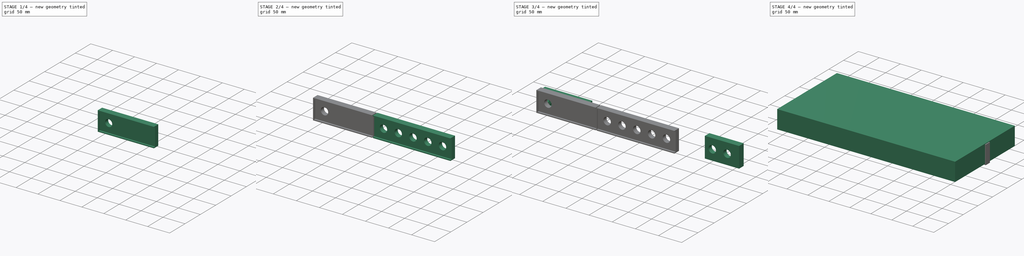
[diagram: build sequence overview — one tinted view per stage of 4, left to right]
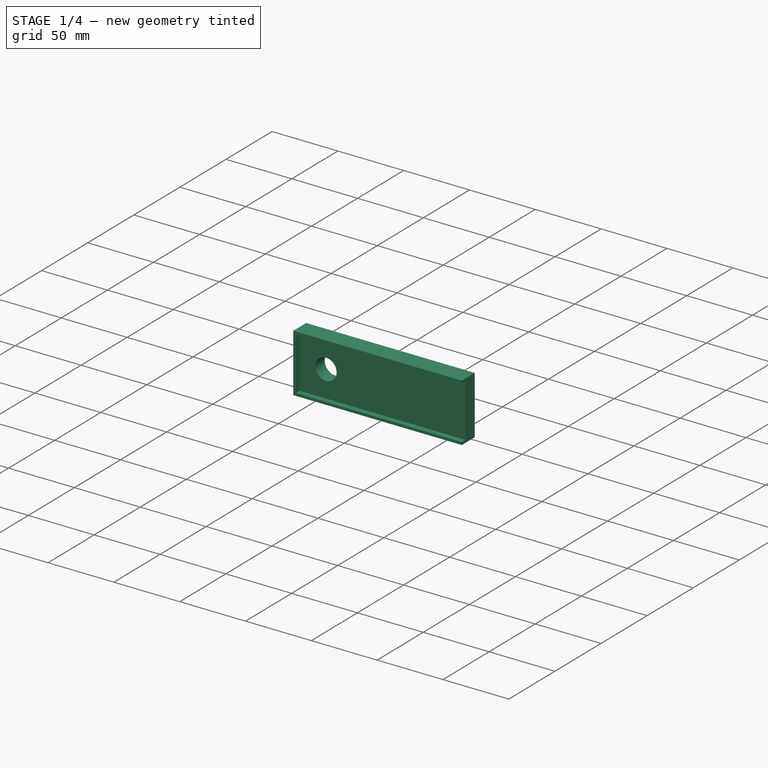
[diagram: stage 1 of 4 — iso view after this stage's code; geometry added in this stage tinted green]
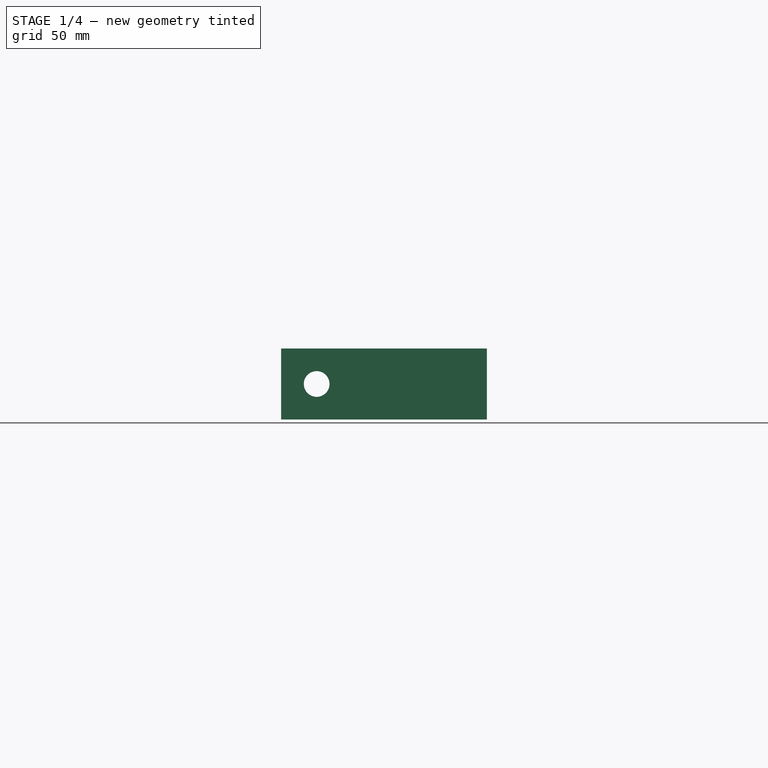
[diagram: stage 1 of 4 — front view after this stage's code; geometry added in this stage tinted green]
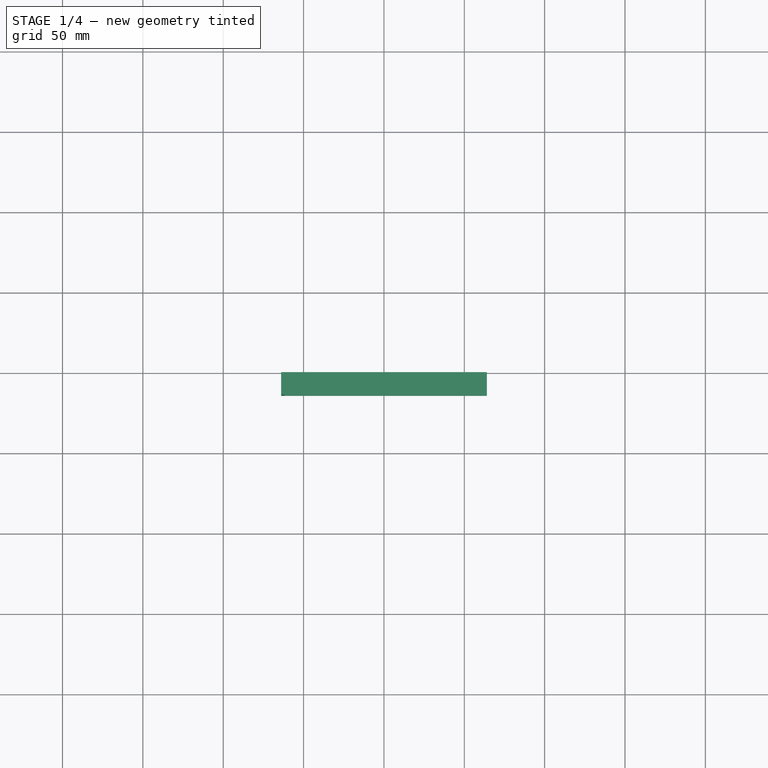
[diagram: stage 1 of 4 — top view after this stage's code; geometry added in this stage tinted green]
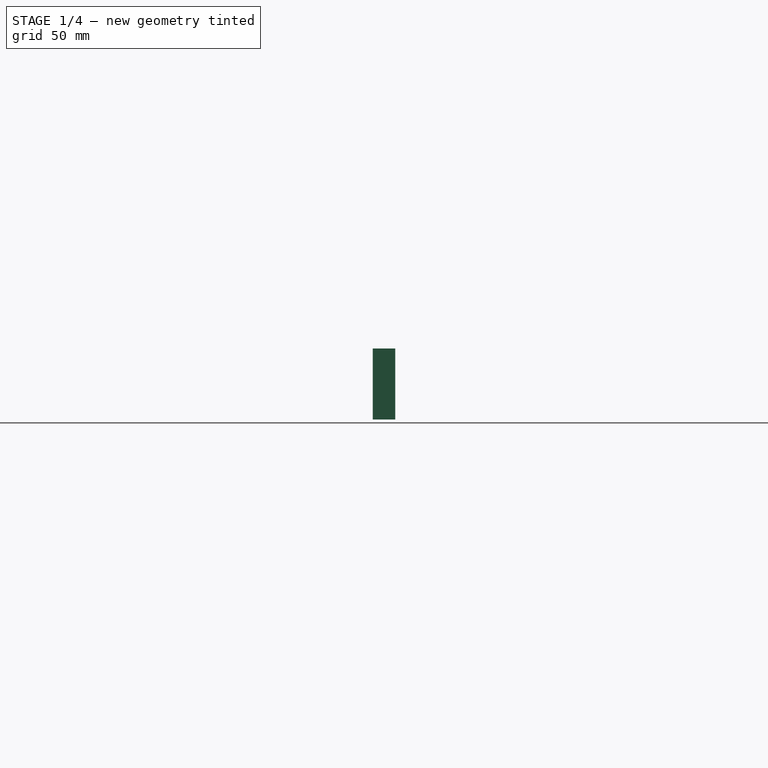
[diagram: stage 1 of 4 — right view after this stage's code; geometry added in this stage tinted green]
FCSTD DOCUMENT  (FreeCAD 1.1R38728 (Git))
Label: AuxPower1U Drill Template
License: All rights reserved
LicenseURL: https://en.wikipedia.org/wiki/All_rights_reserved
objects: Sketcher::SketchObject×10, PartDesign::Pad×10, PartDesign::Body×5
note: 55 computed .brp shape members not serialized (recipe doc carries the construction recipe); baked Part::Feature solids carry a one-line shape summary decoded from their .brp

FEATURE [PartDesign::Body] Body  label="Case"
  AllowCompound = false
  Group = -> [Sketch,Pad]
  Origin = -> Origin
  Tip = -> Pad
FEATURE [Sketcher::SketchObject] Sketch002  label="Block-Oled-Sketch"
  ArcFitTolerance = 1e-06
  AttachmentSupport = -> [XZ_Plane002]
  FullyConstrained = true
  MakeInternals = false
  MapMode = 5
  Placement = pos=(0,0,0) rot=(1,0,0;1.5708rad)
  sketch-geometry (8):
    g0: LineSegment StartX=-211.963 StartY=40.2 StartZ=0 EndX=-211.963 EndY=0 EndZ=0
    g1: LineSegment StartX=-211.963 StartY=0 StartZ=0 EndX=-85.963 EndY=0 EndZ=0
    g2: LineSegment StartX=-85.963 StartY=0 StartZ=0 EndX=-85.963 EndY=40.2 EndZ=0
    g3: LineSegment StartX=-85.963 StartY=40.2 StartZ=0 EndX=-211.963 EndY=40.2 EndZ=0
    g4: LineSegment [constr] StartX=-211.963 StartY=0 StartZ=0 EndX=211.963 EndY=0 EndZ=0
    g5: Circle CenterX=-191.863 CenterY=20.1 CenterZ=0 NormalX=0 NormalY=0 NormalZ=1 AngleXU=0 Radius=8
    g6: LineSegment [constr] StartX=-211.963 StartY=0 StartZ=0 EndX=-191.863 EndY=20.1 EndZ=0
    g7: LineSegment [constr] StartX=-211.963 StartY=40.2 StartZ=0 EndX=-191.863 EndY=20.1 EndZ=0
  constraints (21):
    c: Coincident(g0,g1)
    c: Coincident(g1,g2)
    c: Coincident(g2,g3)
    c: Coincident(g3,g0)
    c: Vertical(g0)
    c: Vertical(g2)
    c: Horizontal(g1)
    c: Horizontal(g3)
    c: DistanceY(g0,g0) = 40.2
    c: DistanceX(g3,g3) = 126
    c: Horizontal(g4)
    c: DistanceX(g4,g4) = 423.926
    c: Symmetric(g4,g4,g-1)
    c: Coincident(g0,g4)
    c: Diameter(g5) = 16  'Hole'
    c: Coincident(g6,g0)
    c: Coincident(g6,g5)
    c: Coincident(g7,g0)
    c: Coincident(g7,g5)
    c: Equal(g7,g6)
    c: Angle(g6) = 0.785398
FEATURE [PartDesign::Pad] Pad002  label="Block-Oled"
  Direction = (0,-1,2e-16)
  Length = 10
  Length2 = 10
  Placement = pos=(0,0,0) rot=(1,0,0;1.5708rad)
  Profile = -> Sketch002
  ReferenceAxis = -> Sketch002 [N_Axis]
  Refine = true
  Suppressed = false
  Type = 0
FEATURE [PartDesign::Body] Body003  label="Front-Buttons-16mm"
  AllowCompound = false
  Group = -> [Sketch003,Pad003,Sketch013,Pad012,Sketch014,Pad013]
  Origin = -> Origin003
  Placement = pos=(0,-150,0) rot=(0,0,1;0rad)
  Tip = -> Pad013
FEATURE [Sketcher::SketchObject] Sketch015  label="Shroud-Oled-Sketch"
  ArcFitTolerance = 1e-06
  AttachmentSupport = -> [XZ_Plane002]
  ExternalGeometry = -> [Pad002]
  FullyConstrained = true
  MakeInternals = false
  MapMode = 5
  Placement = pos=(0,0,0) rot=(1,0,0;1.5708rad)
  sketch-geometry (12):
    g0: LineSegment [constr] StartX=-211.963 StartY=40.2 StartZ=0 EndX=-213.963 EndY=40.2 EndZ=0
    g1: LineSegment [constr] StartX=-213.963 StartY=40.2 StartZ=0 EndX=-213.963 EndY=42.2 EndZ=0
    g2: LineSegment [constr] StartX=-211.963 StartY=0 StartZ=0 EndX=-211.963 EndY=-2 EndZ=0
    g3: LineSegment [constr] StartX=-211.963 StartY=-2 StartZ=0 EndX=-213.963 EndY=-2 EndZ=0
    g4: LineSegment StartX=-85.963 StartY=0 StartZ=0 EndX=-85.963 EndY=-2 EndZ=0
    g5: LineSegment StartX=-85.963 StartY=40.2 StartZ=0 EndX=-85.963 EndY=42.2 EndZ=0
    g6: LineSegment StartX=-85.963 StartY=-2 StartZ=0 EndX=-213.963 EndY=-2 EndZ=0
    g7: LineSegment StartX=-213.963 StartY=-2 StartZ=0 EndX=-213.963 EndY=42.2 EndZ=0
    g8: LineSegment StartX=-213.963 StartY=42.2 StartZ=0 EndX=-85.963 EndY=42.2 EndZ=0
    g9: LineSegment StartX=-85.963 StartY=40.2 StartZ=0 EndX=-211.963 EndY=40.2 EndZ=0
    g10: LineSegment StartX=-211.963 StartY=40.2 StartZ=0 EndX=-211.963 EndY=0 EndZ=0
    g11: LineSegment StartX=-211.963 StartY=0 StartZ=0 EndX=-85.963 EndY=0 EndZ=0
  constraints (30):
    c: Distance(g0) = 2
    c: Coincident(g0,g-4)
    c: Horizontal(g0)
    c: Coincident(g1,g0)
    c: Vertical(g1)
    c: Equal(g1,g0)
    c: Coincident(g2,g-3)
    c: Vertical(g2)
    c: Equal(g2,g0)
    c: Coincident(g3,g2)
    c: Horizontal(g3)
    c: Equal(g3,g2)
    c: Coincident(g4,g-5)
    c: Vertical(g4)
    c: Equal(g4,g2)
    c: Coincident(g5,g-5)
    c: Vertical(g5)
    c: Equal(g5,g4)
    c: Coincident(g6,g4)
    c: Coincident(g6,g3)
    c: Coincident(g7,g3)
    c: Coincident(g7,g1)
    c: Coincident(g8,g1)
    c: Coincident(g8,g5)
    c: Coincident(g9,g5)
    c: Coincident(g9,g0)
    c: Coincident(g10,g0)
    c: Coincident(g10,g2)
    c: Coincident(g11,g2)
    c: Coincident(g11,g4)
FEATURE [PartDesign::Pad] Pad014  label="Shroud-Oled"
  BaseFeature = -> Pad002
  Direction = (0,-1,2e-16)
  Length = 14
  Length2 = 10
  Placement = pos=(0,0,0) rot=(1,0,0;1.5708rad)
  Profile = -> Sketch015
  ReferenceAxis = -> Sketch015 [N_Axis]
  Refine = true
  Suppressed = false
  Type = 0
FEATURE [PartDesign::Body] Body002  label="Front-Oled-16mm"
  AllowCompound = false
  Group = -> [Sketch002,Pad002,Sketch015,Pad014]
  Origin = -> Origin002
  Placement = pos=(0,-150,0) rot=(0,0,1;0rad)
  Tip = -> Pad014
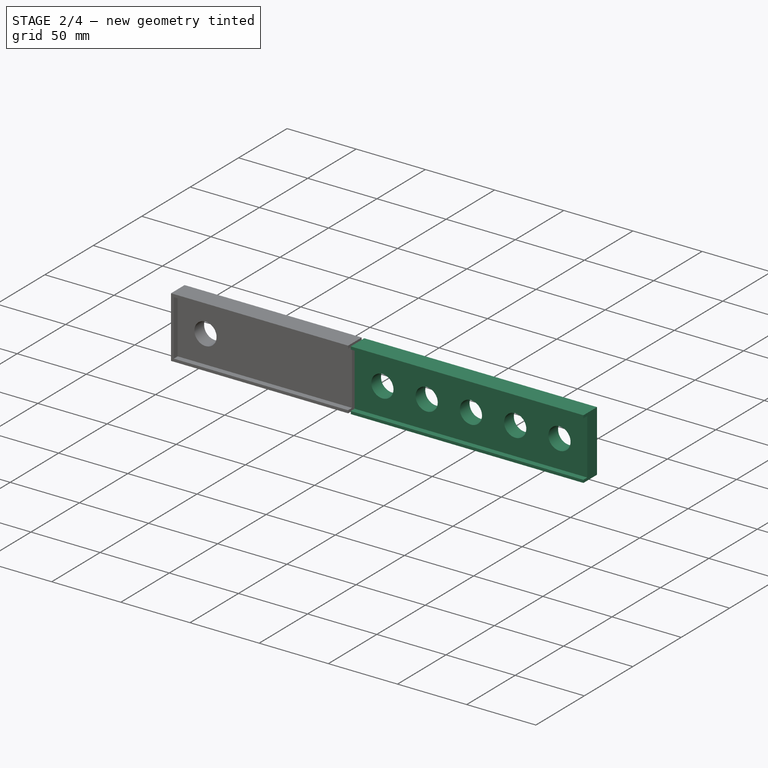
[diagram: stage 2 of 4 — iso view after this stage's code; geometry added in this stage tinted green]
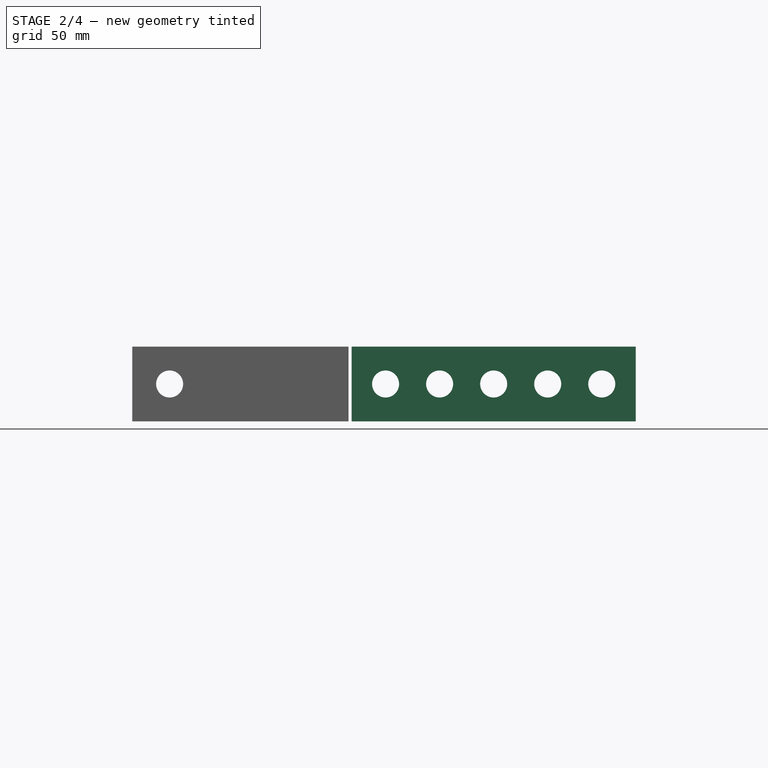
[diagram: stage 2 of 4 — front view after this stage's code; geometry added in this stage tinted green]
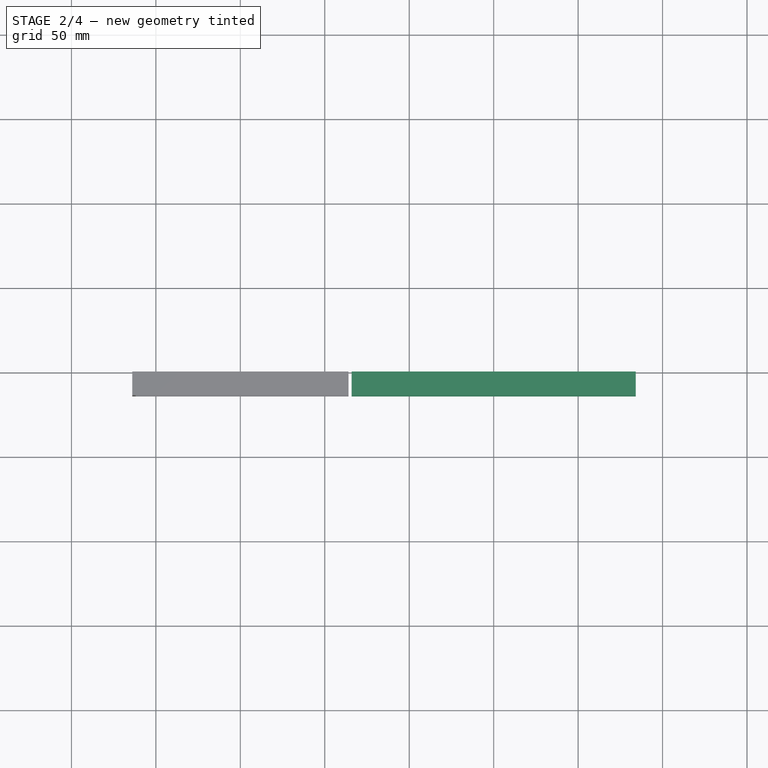
[diagram: stage 2 of 4 — top view after this stage's code; geometry added in this stage tinted green]
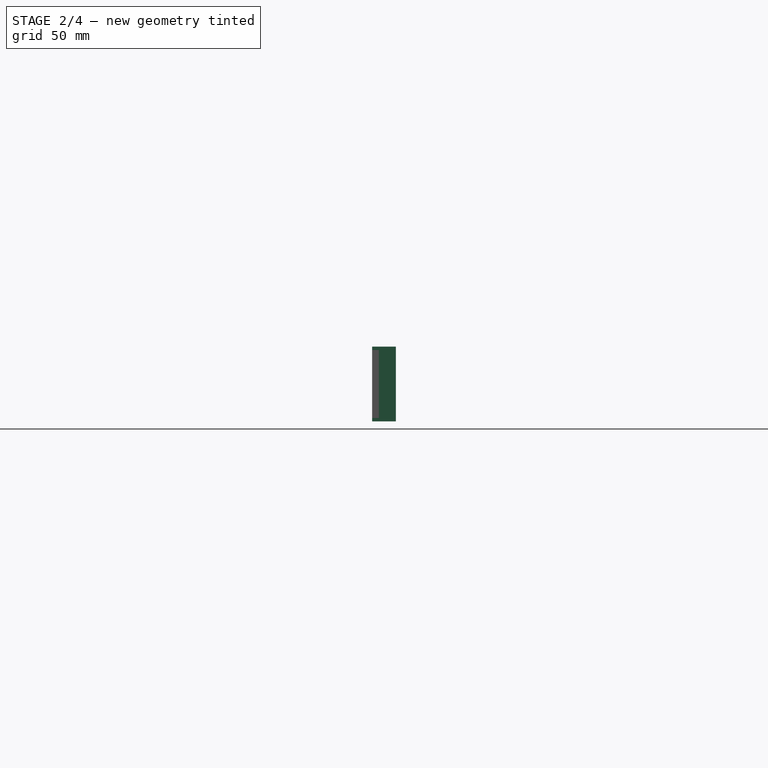
[diagram: stage 2 of 4 — right view after this stage's code; geometry added in this stage tinted green]
FEATURE [Sketcher::SketchObject] Sketch003  label="Block-Buttons-Sketch"
  ArcFitTolerance = 1e-06
  AttachmentSupport = -> [XZ_Plane003]
  FullyConstrained = true
  MakeInternals = false
  MapMode = 5
  Placement = pos=(0,0,0) rot=(1,0,0;1.5708rad)
  sketch-geometry (19):
    g0: LineSegment StartX=-84.1 StartY=40.2 StartZ=0 EndX=-84.1 EndY=0 EndZ=0
    g1: LineSegment StartX=-84.1 StartY=0 StartZ=0 EndX=84.1 EndY=0 EndZ=0
    g2: LineSegment StartX=84.1 StartY=0 StartZ=0 EndX=84.1 EndY=40.2 EndZ=0
    g3: LineSegment StartX=84.1 StartY=40.2 StartZ=0 EndX=-84.1 EndY=40.2 EndZ=0
    g4: LineSegment [constr] StartX=-211.963 StartY=0 StartZ=0 EndX=211.963 EndY=0 EndZ=0
    g5: Circle [constr] CenterX=64 CenterY=20.1 CenterZ=0 NormalX=0 NormalY=0 NormalZ=1 AngleXU=0 Radius=12
    g6: Circle CenterX=64 CenterY=20.1 CenterZ=0 NormalX=0 NormalY=0 NormalZ=1 AngleXU=0 Radius=8
    g7: Circle [constr] CenterX=-64 CenterY=20.1 CenterZ=0 NormalX=0 NormalY=0 NormalZ=1 AngleXU=0 Radius=12
    g8: Circle CenterX=-64 CenterY=20.1 CenterZ=0 NormalX=0 NormalY=0 NormalZ=1 AngleXU=0 Radius=8
    g9: Circle [constr] CenterX=-32 CenterY=20.1 CenterZ=0 NormalX=0 NormalY=0 NormalZ=1 AngleXU=0 Radius=12
    g10: Circle CenterX=-32 CenterY=20.1 CenterZ=0 NormalX=0 NormalY=0 NormalZ=1 AngleXU=0 Radius=8
    g11: Circle [constr] CenterX=0 CenterY=20.1 CenterZ=0 NormalX=0 NormalY=0 NormalZ=1 AngleXU=0 Radius=12
    g12: Circle CenterX=0 CenterY=20.1 CenterZ=0 NormalX=0 NormalY=0 NormalZ=1 AngleXU=0 Radius=8
    g13: Circle [constr] CenterX=32 CenterY=20.1 CenterZ=0 NormalX=0 NormalY=0 NormalZ=1 AngleXU=0 Radius=12
    g14: Circle CenterX=32 CenterY=20.1 CenterZ=0 NormalX=0 NormalY=0 NormalZ=1 AngleXU=0 Radius=8
    g15: LineSegment [constr] StartX=-84.1 StartY=40.2 StartZ=0 EndX=-64 EndY=20.1 EndZ=0
    g16: LineSegment [constr] StartX=64 StartY=20.1 StartZ=0 EndX=84.1 EndY=40.2 EndZ=0
    g17: LineSegment [constr] StartX=84.1 StartY=0 StartZ=0 EndX=64 EndY=20.1 EndZ=0
    g18: LineSegment [constr] StartX=-64 StartY=20.1 StartZ=0 EndX=-84.1 EndY=0 EndZ=0
  constraints (48):
    c: Coincident(g0,g1)
    c: Coincident(g1,g2)
    c: Coincident(g2,g3)
    c: Coincident(g3,g0)
    c: Vertical(g0)
    c: Vertical(g2)
    c: Horizontal(g1)
    c: Horizontal(g3)
    c: DistanceY(g0,g0) = 40.2
    c: Horizontal(g4)
    c: DistanceX(g4,g4) = 423.926
    c: Symmetric(g4,g4,g-1)
    c: Diameter(g5) = 24
    c: Coincident(g5,g6)
    c: Diameter(g7) = 24
    c: Coincident(g7,g8)
    c: Diameter(g9) = 24
    c: Coincident(g9,g10)
    c: Diameter(g11) = 24
    c: Diameter(g12) = 16  'Hole'
    c: Coincident(g11,g12)
    c: Diameter(g13) = 24
    c: Coincident(g13,g14)
    c: DistanceX(g13,g5) = 32
    c: DistanceX(g11,g13) = 32
    c: DistanceX(g9,g11) = 32
    c: DistanceX(g7,g9) = 32
    c: Horizontal(g7,g9)
    c: Horizontal(g9,g11)
    c: Horizontal(g11,g13)
    c: Horizontal(g13,g5)
    c: Coincident(g15,g0)
    c: Coincident(g15,g7)
    c: PointOnObject(g11,g-2)
    c: Angle(g15) = -0.785398
    c: Coincident(g16,g5)
    c: Coincident(g16,g2)
    c: Coincident(g17,g1)
    c: Coincident(g17,g5)
    c: Angle(g16) = 0.785398
    c: Coincident(g18,g7)
    c: Coincident(g18,g0)
    c: Equal(g18,g15)
    c: PointOnObject(g0,g4)
    c: Equal(g8,g10)
    c: Equal(g10,g14)
    c: Equal(g14,g6)
    c: Equal(g12,g10)
FEATURE [PartDesign::Pad] Pad003  label="Block-Buttons"
  Direction = (0,-1,2e-16)
  Length = 10
  Length2 = 10
  Placement = pos=(0,0,0) rot=(1,0,0;1.5708rad)
  Profile = -> Sketch003
  ReferenceAxis = -> Sketch003 [N_Axis]
  Refine = true
  Suppressed = false
  Type = 0
FEATURE [PartDesign::Body] Body006  label="Back-AC-16mm"
  AllowCompound = false
  Group = -> [Sketch006,Pad006,Sketch012,Pad011]
  Origin = -> Origin006
  Placement = pos=(0,150,0) rot=(0,0,1;0rad)
  Tip = -> Pad011
FEATURE [Sketcher::SketchObject] Sketch013  label="Shroud1-Buttons-Sketch"
  ArcFitTolerance = 1e-06
  AttachmentSupport = -> [XZ_Plane003]
  ExternalGeometry = -> [Pad003]
  FullyConstrained = true
  MakeInternals = false
  MapMode = 5
  Placement = pos=(0,0,0) rot=(1,0,0;1.5708rad)
  sketch-geometry (4):
    g0: LineSegment StartX=-84.1 StartY=40.2 StartZ=0 EndX=-84.1 EndY=42.2 EndZ=0
    g1: LineSegment StartX=84.1 StartY=40.2 StartZ=0 EndX=84.1 EndY=42.2 EndZ=0
    g2: LineSegment StartX=84.1 StartY=42.2 StartZ=0 EndX=-84.1 EndY=42.2 EndZ=0
    g3: LineSegment StartX=-84.1 StartY=40.2 StartZ=0 EndX=84.1 EndY=40.2 EndZ=0
  constraints (10):
    c: Coincident(g0,g-4)
    c: Vertical(g0)
    c: DistanceY(g0,g0) = 2
    c: Coincident(g1,g-5)
    c: Vertical(g1)
    c: Equal(g0,g1)
    c: Coincident(g2,g1)
    c: Coincident(g2,g0)
    c: Coincident(g3,g0)
    c: Coincident(g3,g1)
FEATURE [PartDesign::Pad] Pad012  label="Shroud1-Buttons"
  BaseFeature = -> Pad003
  Direction = (0,-1,2e-16)
  Length = 14
  Length2 = 10
  Placement = pos=(0,0,0) rot=(1,0,0;1.5708rad)
  Profile = -> Sketch013
  ReferenceAxis = -> Sketch013 [N_Axis]
  Refine = true
  Suppressed = false
  Type = 0
FEATURE [Sketcher::SketchObject] Sketch014  label="Shroud2-Buttons-Sketch"
  ArcFitTolerance = 1e-06
  AttachmentSupport = -> [XZ_Plane003]
  ExternalGeometry = -> [Pad012]
  FullyConstrained = true
  MakeInternals = false
  MapMode = 5
  Placement = pos=(0,0,0) rot=(1,0,0;1.5708rad)
  sketch-geometry (4):
    g0: LineSegment StartX=84.1 StartY=0 StartZ=0 EndX=84.1 EndY=-2 EndZ=0
    g1: LineSegment StartX=-84.1 StartY=0 StartZ=0 EndX=-84.1 EndY=-2 EndZ=0
    g2: LineSegment StartX=-84.1 StartY=0 StartZ=0 EndX=84.1 EndY=0 EndZ=0
    g3: LineSegment StartX=84.1 StartY=-2 StartZ=0 EndX=-84.1 EndY=-2 EndZ=0
  constraints (10):
    c: Coincident(g0,g-4)
    c: Vertical(g0)
    c: DistanceY(g0,g0) = 2
    c: Coincident(g1,g-3)
    c: Vertical(g1)
    c: Equal(g1,g0)
    c: Coincident(g2,g1)
    c: Coincident(g2,g0)
    c: Coincident(g3,g0)
    c: Coincident(g3,g1)
FEATURE [PartDesign::Pad] Pad013  label="Shroud2-Buttons"
  BaseFeature = -> Pad012
  Direction = (0,-1,2e-16)
  Length = 14
  Length2 = 10
  Placement = pos=(0,0,0) rot=(1,0,0;1.5708rad)
  Profile = -> Sketch014
  ReferenceAxis = -> Sketch014 [N_Axis]
  Refine = true
  Suppressed = false
  Type = 0
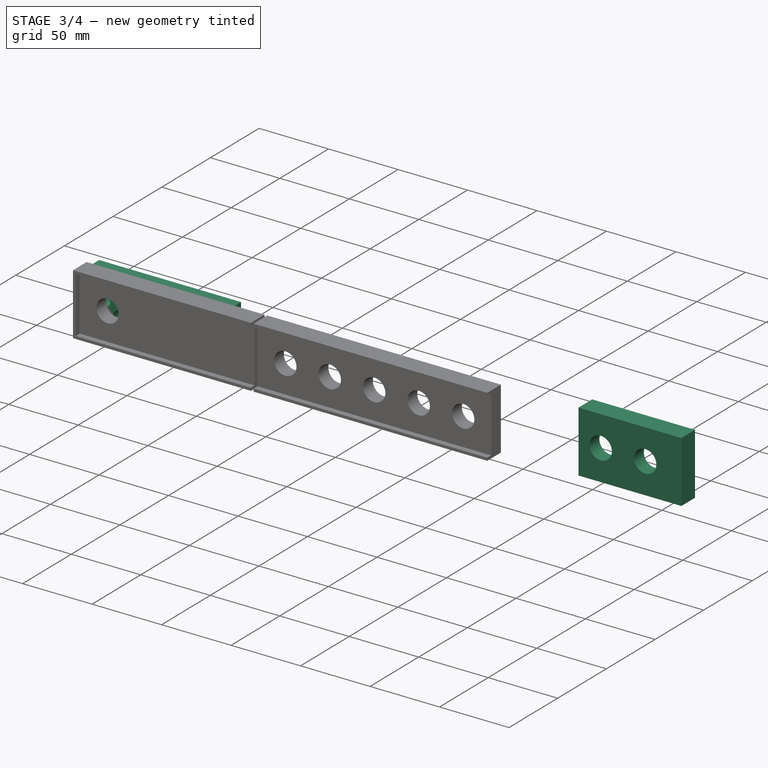
[diagram: stage 3 of 4 — iso view after this stage's code; geometry added in this stage tinted green]
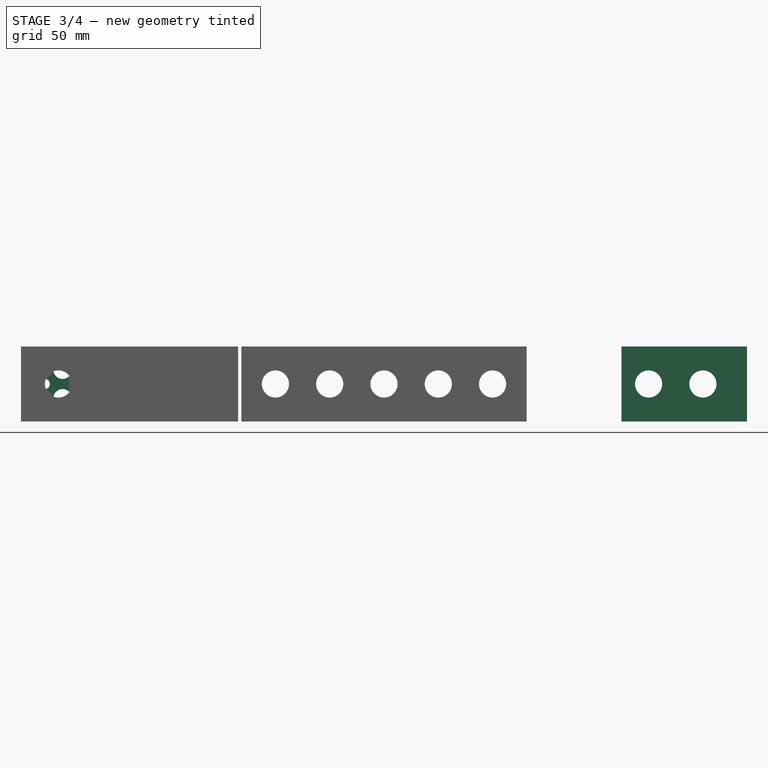
[diagram: stage 3 of 4 — front view after this stage's code; geometry added in this stage tinted green]
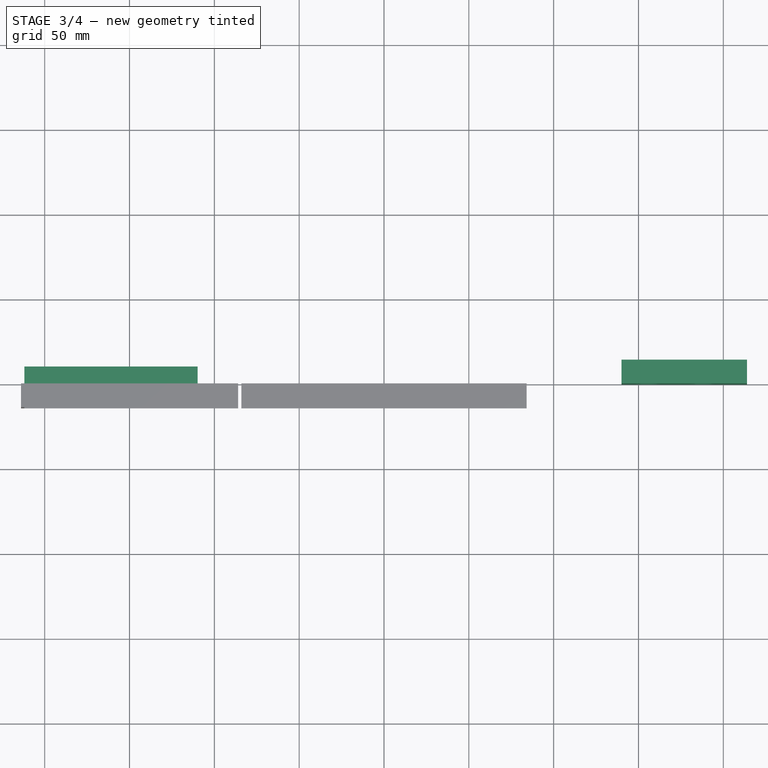
[diagram: stage 3 of 4 — top view after this stage's code; geometry added in this stage tinted green]
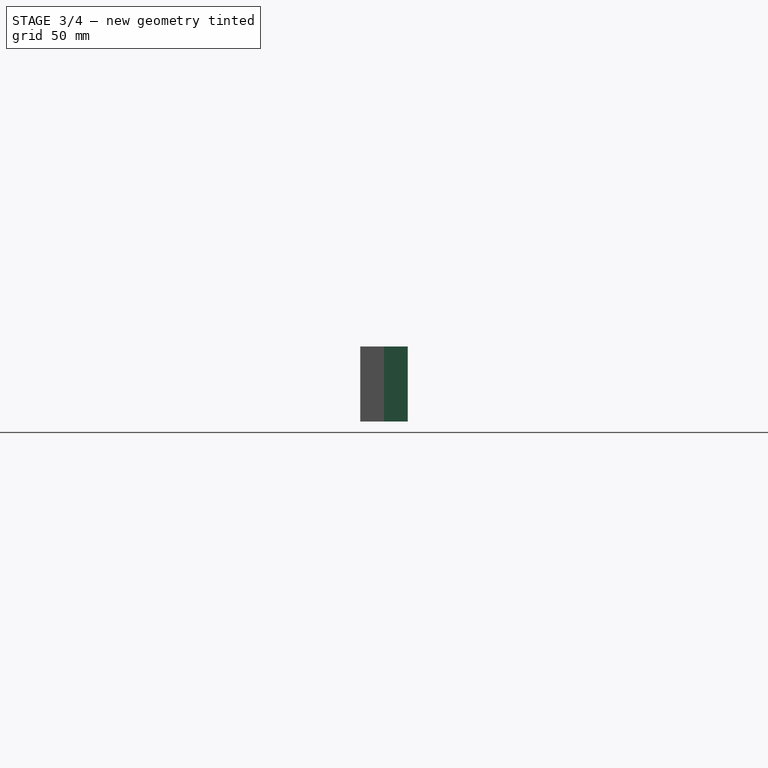
[diagram: stage 3 of 4 — right view after this stage's code; geometry added in this stage tinted green]
FEATURE [Sketcher::SketchObject] Sketch006  label="AC-Block-Sketch"
  ArcFitTolerance = 1e-06
  AttachmentSupport = -> [XZ_Plane006]
  FullyConstrained = true
  MakeInternals = false
  MapMode = 5
  Placement = pos=(0,0,0) rot=(1,0,0;1.5708rad)
  sketch-geometry (15):
    g0: LineSegment [constr] StartX=-211.963 StartY=0 StartZ=0 EndX=211.963 EndY=0 EndZ=0
    g1: LineSegment StartX=139.963 StartY=40.2 StartZ=0 EndX=139.963 EndY=0 EndZ=0
    g2: LineSegment StartX=139.963 StartY=0 StartZ=0 EndX=211.963 EndY=0 EndZ=0
    g3: LineSegment StartX=211.963 StartY=0 StartZ=0 EndX=211.963 EndY=40.2 EndZ=0
    g4: LineSegment StartX=211.963 StartY=40.2 StartZ=0 EndX=139.963 EndY=40.2 EndZ=0
    g5: Circle [constr] CenterX=155.963 CenterY=20.1 CenterZ=0 NormalX=0 NormalY=0 NormalZ=1 AngleXU=0 Radius=12
    g6: Circle CenterX=155.963 CenterY=20.1 CenterZ=0 NormalX=0 NormalY=0 NormalZ=1 AngleXU=0 Radius=8
    g7: Circle CenterX=187.963 CenterY=20.1 CenterZ=0 NormalX=0 NormalY=0 NormalZ=1 AngleXU=0 Radius=8
    g8: Circle [constr] CenterX=187.963 CenterY=20.1 CenterZ=0 NormalX=0 NormalY=0 NormalZ=1 AngleXU=0 Radius=12
    g9: LineSegment [constr] StartX=211.963 StartY=40.2 StartZ=0 EndX=187.963 EndY=20.1 EndZ=0
    g10: LineSegment [constr] StartX=187.963 StartY=20.1 StartZ=0 EndX=211.963 EndY=0 EndZ=0
    g11: LineSegment [constr] StartX=139.963 StartY=40.2 StartZ=0 EndX=155.963 EndY=20.1 EndZ=0
    g12: LineSegment [constr] StartX=155.963 StartY=20.1 StartZ=0 EndX=139.963 EndY=0 EndZ=0
    g13: LineSegment [constr] StartX=187.963 StartY=20.1 StartZ=0 EndX=211.963 EndY=20.1 EndZ=0
    g14: LineSegment [constr] StartX=155.963 StartY=20.1 StartZ=0 EndX=139.963 EndY=20.1 EndZ=0
  constraints (37):
    c: Horizontal(g0)
    c: DistanceX(g0,g0) = 423.926
    c: Symmetric(g0,g0,g-1)
    c: Coincident(g1,g2)
    c: Coincident(g2,g3)
    c: Coincident(g3,g4)
    c: Coincident(g4,g1)
    c: Vertical(g1)
    c: Vertical(g3)
    c: Horizontal(g2)
    c: Horizontal(g4)
    c: DistanceY(g1,g1) = 40.2
    c: Coincident(g0,g2)
    c: Diameter(g5) = 24
    c: Coincident(g5,g6)
    c: DistanceX(g5,g7) = 32
    c: Diameter(g8) = 24
    c: Coincident(g7,g8)
    c: Horizontal(g7,g5)
    c: Coincident(g9,g3)
    c: Coincident(g9,g7)
    c: Coincident(g10,g7)
    c: Coincident(g10,g0)
    c: Equal(g10,g9)
    c: Coincident(g11,g1)
    c: Coincident(g11,g5)
    c: Coincident(g12,g5)
    c: Coincident(g12,g1)
    c: Coincident(g13,g7)
    c: Symmetric(g3,g3,g13)
    c: DistanceX(g13,g13) = 24
    c: PointOnObject(g14,g12)
    c: Symmetric(g1,g1,g14)
    c: Horizontal(g14)
    c: DistanceX(g14,g14) = 16
    c: Diameter(g7) = 16  'Hole'
    c: Equal(g7,g6)
FEATURE [PartDesign::Pad] Pad006  label="AC-Block"
  Direction = (0,-1,2e-16)
  Length = 10
  Length2 = 10
  Placement = pos=(0,0,0) rot=(1,0,0;1.5708rad)
  Profile = -> Sketch006
  ReferenceAxis = -> Sketch006 [N_Axis]
  Refine = true
  Reversed = true
  Suppressed = false
  Type = 0
FEATURE [Sketcher::SketchObject] Sketch007  label="DC-Block-Sketch"
  ArcFitTolerance = 1e-06
  AttachmentSupport = -> [XZ_Plane007]
  FullyConstrained = true
  MakeInternals = false
  MapMode = 5
  Placement = pos=(0,0,0) rot=(1,0,0;1.5708rad)
  sketch-geometry (40):
    g0: LineSegment StartX=-211.963 StartY=40.2 StartZ=0 EndX=-211.963 EndY=0 EndZ=0
    g1: LineSegment StartX=-211.963 StartY=0 StartZ=0 EndX=-109.863 EndY=0 EndZ=0
    g2: LineSegment StartX=-109.863 StartY=0 StartZ=0 EndX=-109.863 EndY=40.2 EndZ=0
    g3: LineSegment StartX=-109.863 StartY=40.2 StartZ=0 EndX=-211.963 EndY=40.2 EndZ=0
    g4: LineSegment [constr] StartX=-211.963 StartY=0 StartZ=0 EndX=211.963 EndY=0 EndZ=0
    g5: Circle CenterX=-199.963 CenterY=20.1 CenterZ=0 NormalX=0 NormalY=0 NormalZ=1 AngleXU=0 Radius=3
    g6: LineSegment [constr] StartX=-211.963 StartY=0 StartZ=0 EndX=-199.963 EndY=20.1 EndZ=0
    g7: LineSegment [constr] StartX=-211.963 StartY=40.2 StartZ=0 EndX=-199.963 EndY=20.1 EndZ=0
    g8: Circle CenterX=-189.463 CenterY=11.6 CenterZ=0 NormalX=0 NormalY=0 NormalZ=1 AngleXU=0 Radius=5.5
    g9: Circle [constr] CenterX=-189.463 CenterY=11.6 CenterZ=0 NormalX=0 NormalY=0 NormalZ=1 AngleXU=0 Radius=8.5
    g10: Circle CenterX=-189.463 CenterY=28.6 CenterZ=0 NormalX=0 NormalY=0 NormalZ=1 AngleXU=0 Radius=5.5
    g11: Circle [constr] CenterX=-189.463 CenterY=28.6 CenterZ=0 NormalX=0 NormalY=0 NormalZ=1 AngleXU=0 Radius=8.5
    g12: Circle CenterX=-172.463 CenterY=28.6 CenterZ=0 NormalX=0 NormalY=0 NormalZ=1 AngleXU=0 Radius=5.5
    g13: Circle [constr] CenterX=-172.463 CenterY=28.6 CenterZ=0 NormalX=0 NormalY=0 NormalZ=1 AngleXU=0 Radius=8.5
    g14: Circle CenterX=-155.463 CenterY=28.6 CenterZ=0 NormalX=0 NormalY=0 NormalZ=1 AngleXU=0 Radius=5.5
    g15: Circle [constr] CenterX=-155.463 CenterY=28.6 CenterZ=0 NormalX=0 NormalY=0 NormalZ=1 AngleXU=0 Radius=8.5
    g16: Circle CenterX=-138.463 CenterY=28.6 CenterZ=0 NormalX=0 NormalY=0 NormalZ=1 AngleXU=0 Radius=5.5
    g17: Circle [constr] CenterX=-138.463 CenterY=28.6 CenterZ=0 NormalX=0 NormalY=0 NormalZ=1 AngleXU=0 Radius=8.5
    g18: Circle CenterX=-121.463 CenterY=28.6 CenterZ=0 NormalX=0 NormalY=0 NormalZ=1 AngleXU=0 Radius=5.5
    g19: Circle [constr] CenterX=-121.463 CenterY=28.6 CenterZ=0 NormalX=0 NormalY=0 NormalZ=1 AngleXU=0 Radius=8.5
    g20: Circle CenterX=-121.463 CenterY=11.6 CenterZ=0 NormalX=0 NormalY=0 NormalZ=1 AngleXU=0 Radius=5.5
    g21: Circle [constr] CenterX=-121.463 CenterY=11.6 CenterZ=0 NormalX=0 NormalY=0 NormalZ=1 AngleXU=0 Radius=8.5
    g22: Circle CenterX=-138.463 CenterY=11.6 CenterZ=0 NormalX=0 NormalY=0 NormalZ=1 AngleXU=0 Radius=5.5
    g23: Circle [constr] CenterX=-138.463 CenterY=11.6 CenterZ=0 NormalX=0 NormalY=0 NormalZ=1 AngleXU=0 Radius=8.5
    g24: Circle CenterX=-155.463 CenterY=11.6 CenterZ=0 NormalX=0 NormalY=0 NormalZ=1 AngleXU=0 Radius=5.5
    g25: Circle [constr] CenterX=-155.463 CenterY=11.6 CenterZ=0 NormalX=0 NormalY=0 NormalZ=1 AngleXU=0 Radius=8.5
    g26: Circle CenterX=-172.463 CenterY=11.6 CenterZ=0 NormalX=0 NormalY=0 NormalZ=1 AngleXU=0 Radius=5.5
    g27: Circle [constr] CenterX=-172.463 CenterY=11.6 CenterZ=0 NormalX=0 NormalY=0 NormalZ=1 AngleXU=0 Radius=8.5
    g28: LineSegment [constr] StartX=-109.863 StartY=40.2 StartZ=0 EndX=-121.463 EndY=28.6 EndZ=0
    g29: LineSegment [constr] StartX=-121.463 StartY=11.6 StartZ=0 EndX=-109.863 EndY=0 EndZ=0
    g30: Circle [constr] CenterX=-199.963 CenterY=20.1 CenterZ=0 NormalX=0 NormalY=0 NormalZ=1 AngleXU=0 Radius=5
    g31: LineSegment [constr] StartX=-199.963 StartY=20.1 StartZ=0 EndX=-197.963 EndY=20.1 EndZ=0
    g32: LineSegment [constr] StartX=-197.963 StartY=20.1 StartZ=0 EndX=-189.463 EndY=28.6 EndZ=0
    g33: LineSegment [constr] StartX=-197.963 StartY=20.1 StartZ=0 EndX=-189.463 EndY=11.6 EndZ=0
    g34: LineSegment [constr] StartX=-189.463 StartY=28.6 StartZ=0 EndX=-189.463 EndY=11.6 EndZ=0
    g35: LineSegment [constr] StartX=-189.463 StartY=28.6 StartZ=0 EndX=-172.463 EndY=28.6 EndZ=0
    g36: LineSegment [constr] StartX=-172.463 StartY=28.6 StartZ=0 EndX=-155.463 EndY=28.6 EndZ=0
    g37: LineSegment [constr] StartX=-155.463 StartY=28.6 StartZ=0 EndX=-138.463 EndY=28.6 EndZ=0
    g38: LineSegment [constr] StartX=-138.463 StartY=28.6 StartZ=0 EndX=-121.463 EndY=28.6 EndZ=0
    g39: LineSegment [constr] StartX=-199.963 StartY=20.1 StartZ=0 EndX=-211.963 EndY=20.1 EndZ=0
  constraints (99):
    c: Coincident(g0,g1)
    c: Coincident(g1,g2)
    c: Coincident(g2,g3)
    c: Coincident(g3,g0)
    c: Vertical(g0)
    c: Vertical(g2)
    c: Horizontal(g1)
    c: Horizontal(g3)
    c: DistanceY(g0,g0) = 40.2
    c: Horizontal(g4)
    c: DistanceX(g4,g4) = 423.926
    c: Symmetric(g4,g4,g-1)
    c: Coincident(g0,g4)
    c: Diameter(g5) = 6  'Hole-UART'
    c: Coincident(g6,g0)
    c: Coincident(g6,g5)
    c: Coincident(g7,g0)
    c: Coincident(g7,g5)
    c: Equal(g7,g6)
    c: Coincident(g8,g9)
    c: Diameter(g11) = 17
    c: Coincident(g10,g11)
    c: Coincident(g12,g13)
    c: Coincident(g14,g15)
    c: Coincident(g16,g17)
    c: Coincident(g18,g19)
    c: Coincident(g20,g21)
    c: Coincident(g22,g23)
    c: Coincident(g24,g25)
    c: Coincident(g26,g27)
    c: Horizontal(g20,g22)
    c: Horizontal(g22,g24)
    c: Horizontal(g24,g26)
    c: Horizontal(g26,g8)
    c: Horizontal(g18,g14)
    c: Horizontal(g14,g12)
    c: Horizontal(g12,g10)
    c: Vertical(g20,g18)
    c: Vertical(g8,g10)
    c: Vertical(g12,g26)
    c: Vertical(g14,g24)
    c: Vertical(g16,g22)
    c: DistanceY(g22,g16) = 17
    c: Horizontal(g16,g14)
    c: PointOnObject(g28,g2)
    c: Coincident(g28,g18)
    c: Coincident(g29,g20)
    c: Coincident(g29,g1)
    c: Angle(g29) = -0.785398
    c: Equal(g28,g29)
    c: Coincident(g30,g5)
    c: Diameter(g30) = 10
    c: Coincident(g31,g5)
    c: Horizontal(g31)
    c: Coincident(g32,g31)
    c: Coincident(g32,g10)
    c: Angle(g32) = 0.785398
    c: Coincident(g33,g31)
    c: Coincident(g33,g8)
    c: Equal(g33,g32)
    c: DistanceX(g31,g31) = 2
    c: Diameter(g10) = 11  'Hole'
    c: Equal(g10,g8)
    c: Equal(g12,g26)
    c: Equal(g26,g8)
    c: Equal(g14,g24)
    c: Equal(g24,g22)
    c: Equal(g22,g16)
    c: Equal(g16,g12)
    c: Equal(g18,g20)
    c: Equal(g20,g22)
    c: Coincident(g34,g10)
    c: Coincident(g34,g8)
    c: Coincident(g35,g10)
    c: Coincident(g35,g12)
    c: Equal(g35,g34)
    c: Coincident(g36,g12)
    c: Coincident(g36,g14)
    c: Equal(g13,g11)
    c: Equal(g36,g35)
    c: Equal(g9,g11)
    c: Equal(g27,g9)
    c: Equal(g27,g25)
    c: Equal(g15,g13)
    c: Coincident(g37,g14)
    c: Coincident(g37,g16)
    c: Equal(g37,g36)
    c: Equal(g17,g15)
    c: Equal(g23,g25)
    c: Equal(g21,g23)
    c: Equal(g19,g17)
    c: Coincident(g38,g16)
    c: Horizontal(g38)
    c: Vertical(g38,g18)
    c: Equal(g38,g36)
    c: Coincident(g39,g5)
    c: Horizontal(g39)
    c: Vertical(g39,g0)
    c: DistanceX(g39,g39) = 12
FEATURE [PartDesign::Pad] Pad007  label="DC-Block"
  Direction = (0,-1,2e-16)
  Length = 10
  Length2 = 10
  Placement = pos=(0,0,0) rot=(1,0,0;1.5708rad)
  Profile = -> Sketch007
  ReferenceAxis = -> Sketch007 [N_Axis]
  Refine = true
  Reversed = true
  Suppressed = false
  Type = 0
FEATURE [PartDesign::Body] Body007  label="Back-DC-11mm-6mm"
  AllowCompound = false
  Group = -> [Sketch007,Pad007,Sketch011,Pad010]
  Origin = -> Origin007
  Placement = pos=(0,150,0) rot=(0,0,1;0rad)
  Tip = -> Pad010
FEATURE [Sketcher::SketchObject] Sketch012  label="AC-Shroud-Sketch"
  ArcFitTolerance = 1e-06
  AttachmentSupport = -> [XZ_Plane006]
  ExternalGeometry = -> [Pad006]
  FullyConstrained = true
  MakeInternals = false
  MapMode = 5
  Placement = pos=(0,0,0) rot=(1,0,0;1.5708rad)
  sketch-geometry (14):
    g0: LineSegment [constr] StartX=211.963 StartY=40.2 StartZ=0 EndX=213.963 EndY=40.2 EndZ=0
    g1: LineSegment [constr] StartX=213.963 StartY=40.2 StartZ=0 EndX=213.963 EndY=42.2 EndZ=0
    g2: LineSegment [constr] StartX=211.963 StartY=0 StartZ=0 EndX=211.963 EndY=-2 EndZ=0
    g3: LineSegment [constr] StartX=211.963 StartY=-2 StartZ=0 EndX=213.963 EndY=-2 EndZ=0
    g4: LineSegment [constr] StartX=139.963 StartY=0 StartZ=0 EndX=139.963 EndY=-2 EndZ=0
    g5: LineSegment [constr] StartX=139.963 StartY=40.2 StartZ=0 EndX=139.963 EndY=42.2 EndZ=0
    g6: LineSegment StartX=139.963 StartY=40.2 StartZ=0 EndX=139.963 EndY=42.2 EndZ=0
    g7: LineSegment StartX=139.963 StartY=42.2 StartZ=0 EndX=213.963 EndY=42.2 EndZ=0
    g8: LineSegment StartX=213.963 StartY=42.2 StartZ=0 EndX=213.963 EndY=-2 EndZ=0
    g9: LineSegment StartX=213.963 StartY=-2 StartZ=0 EndX=139.963 EndY=-2 EndZ=0
    g10: LineSegment StartX=139.963 StartY=-2 StartZ=0 EndX=139.963 EndY=0 EndZ=0
    g11: LineSegment StartX=139.963 StartY=0 StartZ=0 EndX=211.963 EndY=0 EndZ=0
    g12: LineSegment StartX=211.963 StartY=0 StartZ=0 EndX=211.963 EndY=40.2 EndZ=0
    g13: LineSegment StartX=211.963 StartY=40.2 StartZ=0 EndX=139.963 EndY=40.2 EndZ=0
  constraints (34):
    c: Distance(g0) = 2
    c: Coincident(g0,g-4)
    c: Horizontal(g0)
    c: Coincident(g1,g0)
    c: Vertical(g1)
    c: Equal(g1,g0)
    c: Coincident(g2,g-4)
    c: Vertical(g2)
    c: Coincident(g3,g2)
    c: Horizontal(g3)
    c: Equal(g2,g3)
    c: Equal(g3,g0)
    c: Coincident(g4,g-5)
    c: Vertical(g4)
    c: Equal(g4,g2)
    c: Coincident(g5,g-5)
    c: Vertical(g5)
    c: Equal(g5,g0)
    c: Coincident(g6,g5)
    c: Coincident(g6,g5)
    c: Coincident(g7,g5)
    c: Coincident(g7,g1)
    c: Coincident(g8,g1)
    c: Coincident(g8,g3)
    c: Coincident(g9,g3)
    c: Coincident(g9,g4)
    c: Coincident(g10,g4)
    c: Coincident(g10,g4)
    c: Coincident(g11,g4)
    c: Coincident(g11,g2)
    c: Coincident(g12,g2)
    c: Coincident(g12,g0)
    c: Coincident(g13,g0)
    c: Coincident(g13,g5)
FEATURE [PartDesign::Pad] Pad011  label="AC-Shroud"
  BaseFeature = -> Pad006
  Direction = (0,-1,2e-16)
  Length = 14
  Length2 = 10
  Placement = pos=(0,0,0) rot=(1,0,0;1.5708rad)
  Profile = -> Sketch012
  ReferenceAxis = -> Sketch012 [N_Axis]
  Refine = true
  Reversed = true
  Suppressed = false
  Type = 0
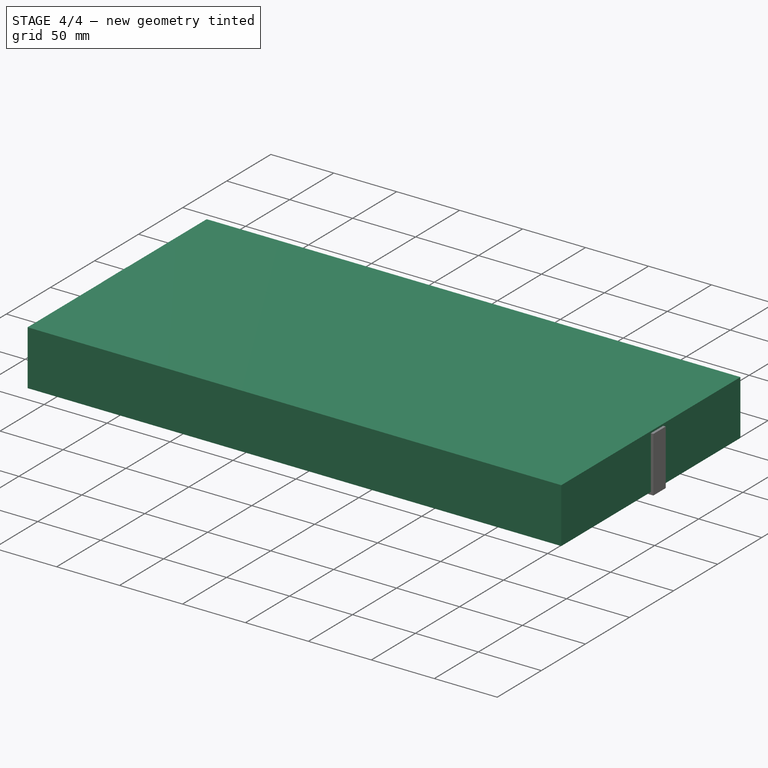
[diagram: stage 4 of 4 — iso view after this stage's code; geometry added in this stage tinted green]
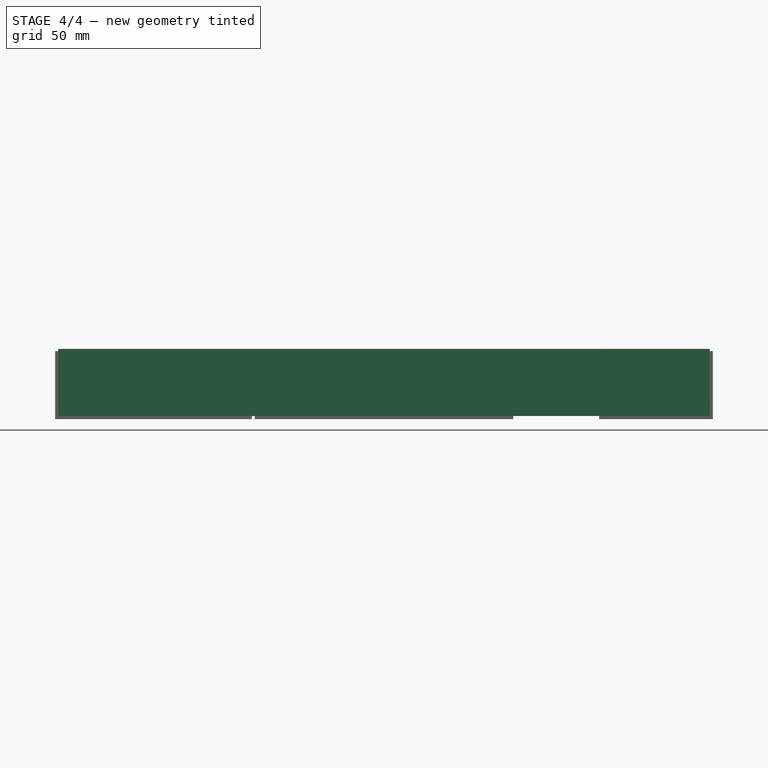
[diagram: stage 4 of 4 — front view after this stage's code; geometry added in this stage tinted green]
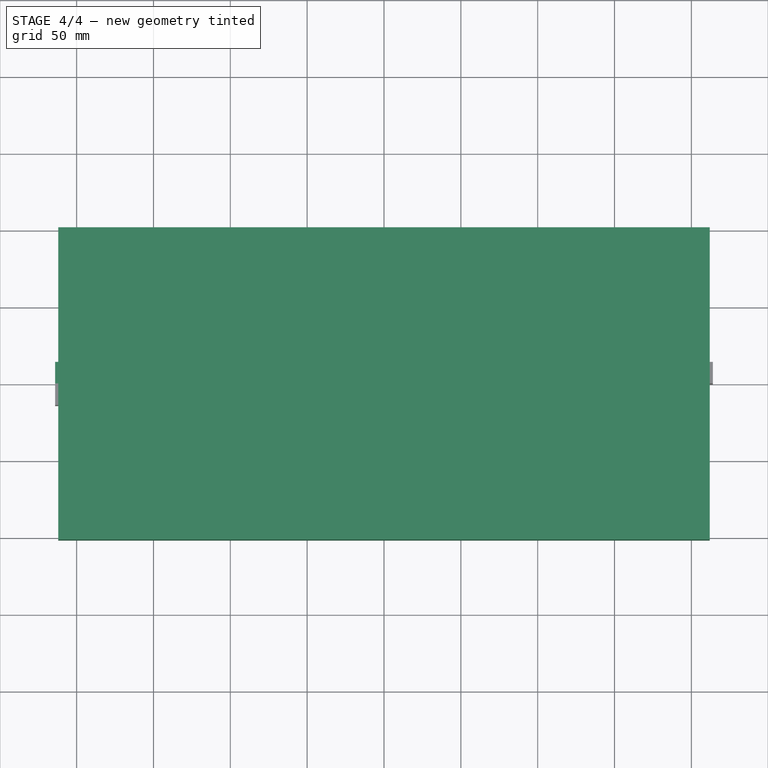
[diagram: stage 4 of 4 — top view after this stage's code; geometry added in this stage tinted green]
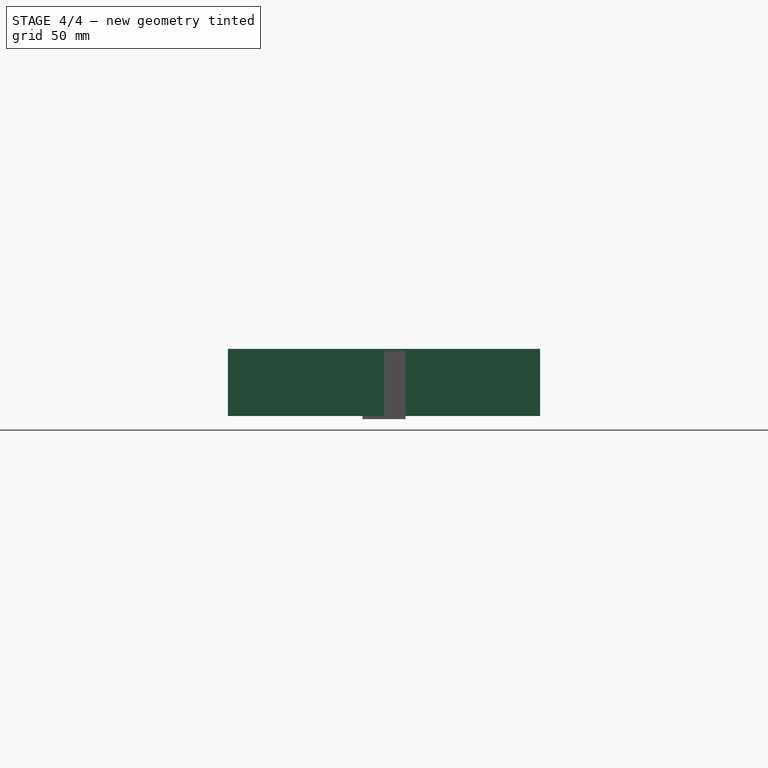
[diagram: stage 4 of 4 — right view after this stage's code; geometry added in this stage tinted green]
FEATURE [Sketcher::SketchObject] Sketch
  ArcFitTolerance = 1e-06
  AttachmentSupport = -> [XY_Plane]
  FullyConstrained = true
  MakeInternals = false
  MapMode = 5
  sketch-geometry (32):
    g0: LineSegment StartX=-211.963 StartY=101.6 StartZ=0 EndX=-211.963 EndY=-101.6 EndZ=0
    g1: LineSegment StartX=-211.963 StartY=-101.6 StartZ=0 EndX=211.963 EndY=-101.6 EndZ=0
    g2: LineSegment StartX=211.963 StartY=-101.6 StartZ=0 EndX=211.963 EndY=101.6 EndZ=0
    g3: LineSegment StartX=211.963 StartY=101.6 StartZ=0 EndX=-211.963 EndY=101.6 EndZ=0
    g4: Circle [constr] CenterX=191.148 CenterY=-63.7159 CenterZ=0 NormalX=0 NormalY=0 NormalZ=1 AngleXU=0 Radius=3.6195
    g5: Circle [constr] CenterX=-63.7159 CenterY=63.7159 CenterZ=0 NormalX=0 NormalY=0 NormalZ=1 AngleXU=0 Radius=3.6195
    g6: Circle [constr] CenterX=-191.148 CenterY=-63.7159 CenterZ=0 NormalX=0 NormalY=0 NormalZ=1 AngleXU=0 Radius=3.6195
    g7: Circle [constr] CenterX=-191.148 CenterY=63.7159 CenterZ=0 NormalX=0 NormalY=0 NormalZ=1 AngleXU=0 Radius=3.6195
    g8: Circle [constr] CenterX=-63.7159 CenterY=-63.7159 CenterZ=0 NormalX=0 NormalY=0 NormalZ=1 AngleXU=0 Radius=3.6195
    g9: Circle [constr] CenterX=63.7159 CenterY=-63.7159 CenterZ=0 NormalX=0 NormalY=0 NormalZ=1 AngleXU=0 Radius=3.6195
    g10: Circle [constr] CenterX=63.7159 CenterY=63.7159 CenterZ=0 NormalX=0 NormalY=0 NormalZ=1 AngleXU=0 Radius=3.6195
    g11: Circle [constr] CenterX=191.148 CenterY=63.7159 CenterZ=0 NormalX=0 NormalY=0 NormalZ=1 AngleXU=0 Radius=3.6195
    g12: Circle [constr] CenterX=111.506 CenterY=63.7159 CenterZ=0 NormalX=0 NormalY=0 NormalZ=1 AngleXU=0 Radius=5.1562
    g13: Circle [constr] CenterX=-111.506 CenterY=63.7159 CenterZ=0 NormalX=0 NormalY=0 NormalZ=1 AngleXU=0 Radius=5.1562
    g14: Circle [constr] CenterX=-111.506 CenterY=-63.7159 CenterZ=0 NormalX=0 NormalY=0 NormalZ=1 AngleXU=0 Radius=5.1562
    g15: Circle [constr] CenterX=111.506 CenterY=-63.7159 CenterZ=0 NormalX=0 NormalY=0 NormalZ=1 AngleXU=0 Radius=5.1562
    g16: LineSegment [constr] StartX=-211.963 StartY=90.551 StartZ=0 EndX=-211.963 EndY=76.581 EndZ=0
    g17: LineSegment [constr] StartX=-211.963 StartY=76.581 StartZ=0 EndX=-205.994 EndY=76.581 EndZ=0
    g18: LineSegment [constr] StartX=-205.994 StartY=76.581 StartZ=0 EndX=-205.994 EndY=90.551 EndZ=0
    g19: LineSegment [constr] StartX=-205.994 StartY=90.551 StartZ=0 EndX=-211.963 EndY=90.551 EndZ=0
    g20: LineSegment [constr] StartX=-211.963 StartY=-76.581 StartZ=0 EndX=-211.963 EndY=-90.551 EndZ=0
    g21: LineSegment [constr] StartX=-211.963 StartY=-90.551 StartZ=0 EndX=-205.994 EndY=-90.551 EndZ=0
    g22: LineSegment [constr] StartX=-205.994 StartY=-90.551 StartZ=0 EndX=-205.994 EndY=-76.581 EndZ=0
    g23: LineSegment [constr] StartX=-205.994 StartY=-76.581 StartZ=0 EndX=-211.963 EndY=-76.581 EndZ=0
    g24: LineSegment [constr] StartX=205.994 StartY=-76.581 StartZ=0 EndX=205.994 EndY=-90.551 EndZ=0
    g25: LineSegment [constr] StartX=205.994 StartY=-90.551 StartZ=0 EndX=211.963 EndY=-90.551 EndZ=0
    g26: LineSegment [constr] StartX=211.963 StartY=-90.551 StartZ=0 EndX=211.963 EndY=-76.581 EndZ=0
    g27: LineSegment [constr] StartX=211.963 StartY=-76.581 StartZ=0 EndX=205.994 EndY=-76.581 EndZ=0
    g28: LineSegment [constr] StartX=205.994 StartY=90.551 StartZ=0 EndX=205.994 EndY=76.581 EndZ=0
    g29: LineSegment [constr] StartX=205.994 StartY=76.581 StartZ=0 EndX=211.963 EndY=76.581 EndZ=0
    g30: LineSegment [constr] StartX=211.963 StartY=76.581 StartZ=0 EndX=211.963 EndY=90.551 EndZ=0
    g31: LineSegment [constr] StartX=211.963 StartY=90.551 StartZ=0 EndX=205.994 EndY=90.551 EndZ=0
  constraints (92):
    c: Coincident(g0,g1)
    c: Coincident(g1,g2)
    c: Coincident(g2,g3)
    c: Coincident(g3,g0)
    c: Vertical(g0)
    c: Vertical(g2)
    c: Horizontal(g1)
    c: Horizontal(g3)
    c: DistanceX(g3,g3) = 423.926
    c: DistanceY(g0,g0) = 203.2
    c: Symmetric(g2,g0,g-1)
    c: Diameter(g4) = 7.239
    c: Diameter(g5) = 7.239
    c: Diameter(g6) = 7.239
    c: Diameter(g7) = 7.239
    c: Diameter(g8) = 7.239
    c: Diameter(g9) = 7.239
    c: Diameter(g10) = 7.239
    c: Diameter(g11) = 7.239
    c: DistanceY(g6,g7) = 127.432
    c: DistanceY(g8,g5) = 127.432
    c: DistanceY(g9,g10) = 127.432
    c: DistanceY(g4,g11) = 127.432
    c: DistanceX(g10,g11) = 127.432
    c: DistanceX(g5,g10) = 127.432
    c: DistanceX(g7,g5) = 127.432
    c: Vertical(g4,g11)
    c: Vertical(g10,g9)
    c: Vertical(g5,g8)
    c: Vertical(g7,g6)
    c: Horizontal(g7,g5)
    c: Horizontal(g5,g10)
    c: Horizontal(g10,g11)
    c: Symmetric(g7,g4,g-1)
    c: Diameter(g12) = 10.3124
    c: Diameter(g13) = 10.3124
    c: Diameter(g14) = 10.3124
    c: Diameter(g15) = 10.3124
    c: DistanceX(g14,g15) = 223.012
    c: Vertical(g14,g13)
    c: Vertical(g12,g15)
    c: DistanceY(g14,g13) = 127.432
    c: Horizontal(g12,g13)
    c: Horizontal(g14,g15)
    c: Symmetric(g12,g14,g-1)
    c: Coincident(g16,g17)
    c: Coincident(g17,g18)
    c: Coincident(g18,g19)
    c: Coincident(g19,g16)
    c: Vertical(g16)
    c: Vertical(g18)
    c: Horizontal(g17)
    c: Horizontal(g19)
    c: DistanceY(g16,g16) = 13.97
    c: DistanceX(g19,g19) = 5.969
    c: Coincident(g20,g21)
    c: Coincident(g21,g22)
    c: Coincident(g22,g23)
    c: Coincident(g23,g20)
    c: Vertical(g20)
    c: Vertical(g22)
    c: Horizontal(g21)
    c: Horizontal(g23)
    c: DistanceY(g20,g20) = 13.97
    c: DistanceX(g23,g23) = 5.969
    c: Coincident(g24,g25)
    c: Coincident(g25,g26)
    c: Coincident(g26,g27)
    c: Coincident(g27,g24)
    c: Vertical(g24)
    c: Vertical(g26)
    c: Horizontal(g25)
    c: Horizontal(g27)
    c: DistanceY(g24,g24) = 13.97
    c: DistanceX(g27,g27) = 5.969
    c: Coincident(g28,g29)
    c: Coincident(g29,g30)
    c: Coincident(g30,g31)
    c: Coincident(g31,g28)
    c: Vertical(g28)
    c: Vertical(g30)
    c: Horizontal(g29)
    c: Horizontal(g31)
    c: DistanceY(g28,g28) = 13.97
    c: DistanceX(g31,g31) = 5.969
    c: DistanceX(g21,g24) = 411.988
    c: DistanceX(g17,g28) = 411.988
    c: Horizontal(g21,g24)
    c: Horizontal(g28,g17)
    c: DistanceY(g22,g17) = 153.162
    c: Vertical(g16,g20)
    c: Symmetric(g24,g17,g-1)
FEATURE [PartDesign::Pad] Pad
  Direction = (0,0,1)
  Length = 43.688
  Length2 = 10
  Profile = -> Sketch
  ReferenceAxis = -> Sketch [N_Axis]
  Refine = true
  Suppressed = false
  Type = 0
FEATURE [Sketcher::SketchObject] Sketch011  label="DC-Shroud-Sketch"
  ArcFitTolerance = 1e-06
  AttachmentSupport = -> [XZ_Plane007]
  ExternalGeometry = -> [Sketch007]
  FullyConstrained = true
  MakeInternals = false
  MapMode = 5
  Placement = pos=(0,0,0) rot=(1,0,0;1.5708rad)
  sketch-geometry (14):
    g0: LineSegment [constr] StartX=-109.863 StartY=40.2 StartZ=0 EndX=-109.863 EndY=42.2 EndZ=0
    g1: LineSegment [constr] StartX=-109.863 StartY=0 StartZ=0 EndX=-109.863 EndY=-2 EndZ=0
    g2: LineSegment [constr] StartX=-211.963 StartY=0 StartZ=0 EndX=-213.963 EndY=0 EndZ=0
    g3: LineSegment [constr] StartX=-213.963 StartY=0 StartZ=0 EndX=-213.963 EndY=-2 EndZ=0
    g4: LineSegment [constr] StartX=-211.963 StartY=40.2 StartZ=0 EndX=-213.963 EndY=40.2 EndZ=0
    g5: LineSegment [constr] StartX=-213.963 StartY=40.2 StartZ=0 EndX=-213.963 EndY=42.2 EndZ=0
    g6: LineSegment StartX=-109.863 StartY=40.2 StartZ=0 EndX=-109.863 EndY=42.2 EndZ=0
    g7: LineSegment StartX=-109.863 StartY=42.2 StartZ=0 EndX=-213.963 EndY=42.2 EndZ=0
    g8: LineSegment StartX=-213.963 StartY=42.2 StartZ=0 EndX=-213.963 EndY=-2 EndZ=0
    g9: LineSegment StartX=-213.963 StartY=-2 StartZ=0 EndX=-109.863 EndY=-2 EndZ=0
    g10: LineSegment StartX=-109.863 StartY=-2 StartZ=0 EndX=-109.863 EndY=0 EndZ=0
    g11: LineSegment StartX=-109.863 StartY=0 StartZ=0 EndX=-211.963 EndY=0 EndZ=0
    g12: LineSegment StartX=-211.963 StartY=0 StartZ=0 EndX=-211.963 EndY=40.2 EndZ=0
    g13: LineSegment StartX=-211.963 StartY=40.2 StartZ=0 EndX=-109.863 EndY=40.2 EndZ=0
  constraints (35):
    c: Distance(g0) = 2
    c: Coincident(g0,g-5)
    c: Vertical(g0)
    c: Coincident(g1,g-5)
    c: Vertical(g1)
    c: Equal(g1,g0)
    c: Coincident(g2,g-4)
    c: PointOnObject(g2,g-1)
    c: Equal(g2,g1)
    c: Coincident(g3,g2)
    c: Vertical(g3)
    c: Equal(g3,g2)
    c: Coincident(g4,g-4)
    c: Horizontal(g4)
    c: Equal(g3,g4)
    c: Coincident(g5,g4)
    c: Vertical(g5)
    c: Equal(g4,g5)
    c: PointOnObject(g6,g-5)
    c: Coincident(g6,g0)
    c: Coincident(g7,g0)
    c: Coincident(g7,g5)
    c: Coincident(g8,g5)
    c: Coincident(g8,g3)
    c: Coincident(g9,g3)
    c: Coincident(g9,g1)
    c: Coincident(g10,g1)
    c: Coincident(g10,g1)
    c: Coincident(g11,g1)
    c: Coincident(g11,g2)
    c: Coincident(g12,g2)
    c: Coincident(g12,g4)
    c: Coincident(g13,g4)
    c: Coincident(g13,g6)
    c: Horizontal(g13)
FEATURE [PartDesign::Pad] Pad010  label="DC-Shroud001"
  BaseFeature = -> Pad007
  Direction = (0,-1,2e-16)
  Length = 14
  Length2 = 10
  Placement = pos=(0,0,0) rot=(1,0,0;1.5708rad)
  Profile = -> Sketch011
  ReferenceAxis = -> Sketch011 [N_Axis]
  Refine = true
  Reversed = true
  Suppressed = false
  Type = 0
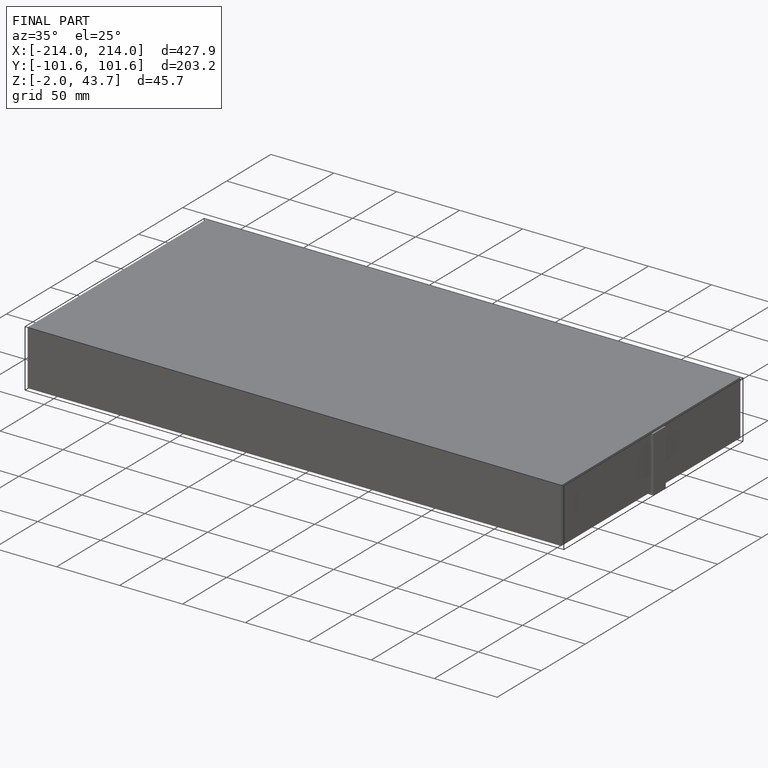
[diagram: finished part — iso view with bounding-box wireframe]
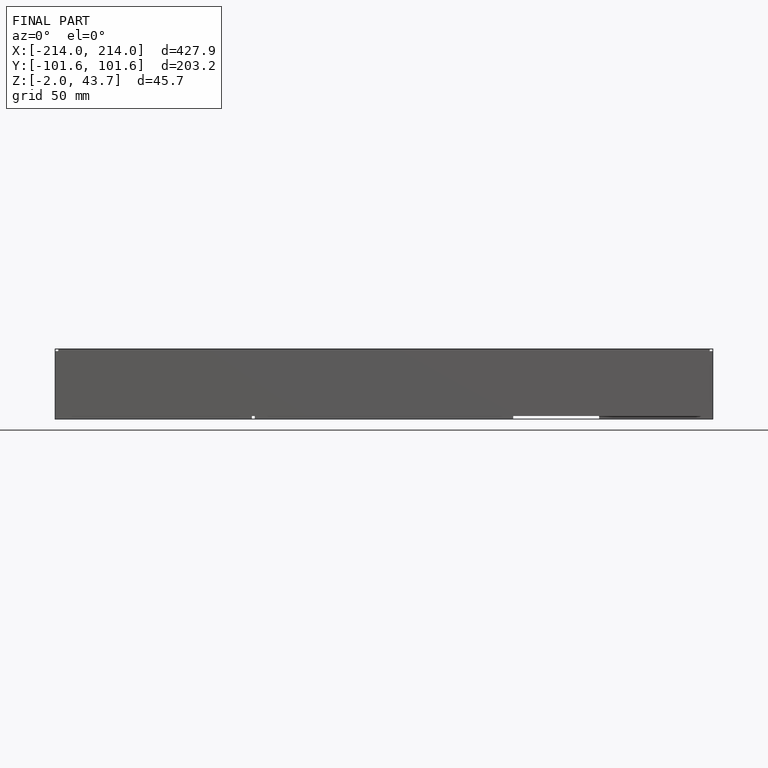
[diagram: finished part — front view with bounding-box wireframe]
